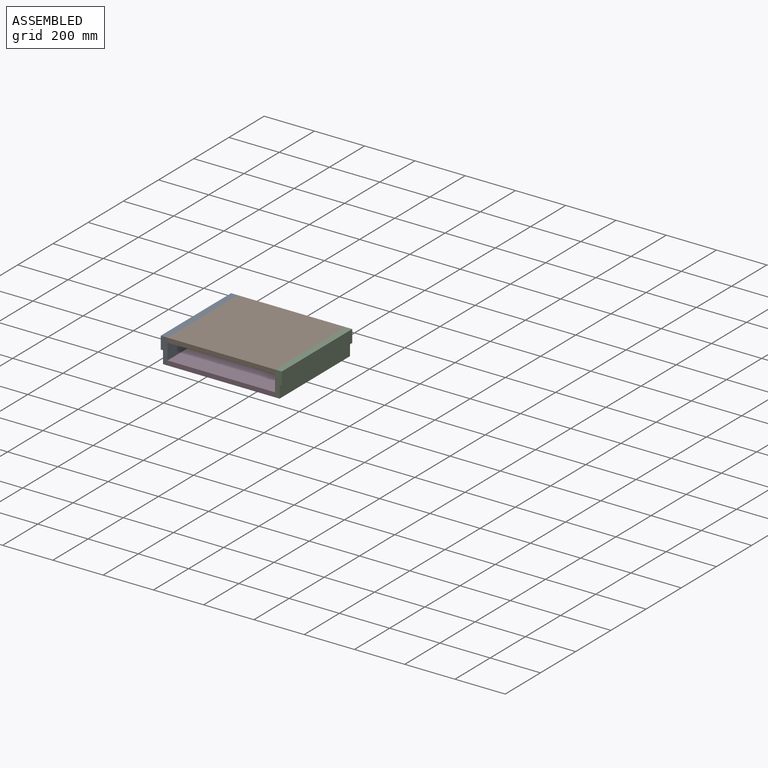
[diagram: assembled view]
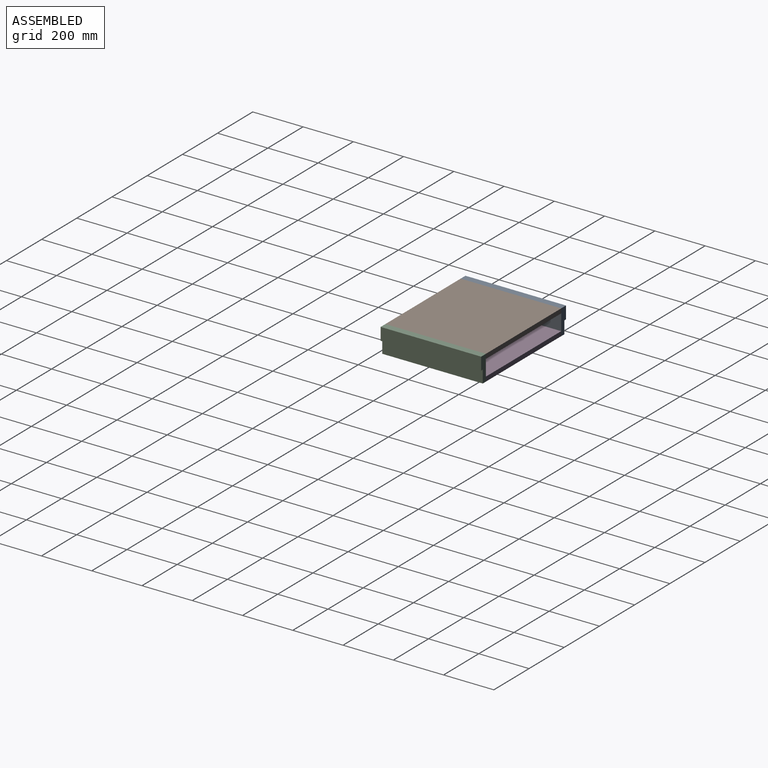
[diagram: assembled view, second angle]
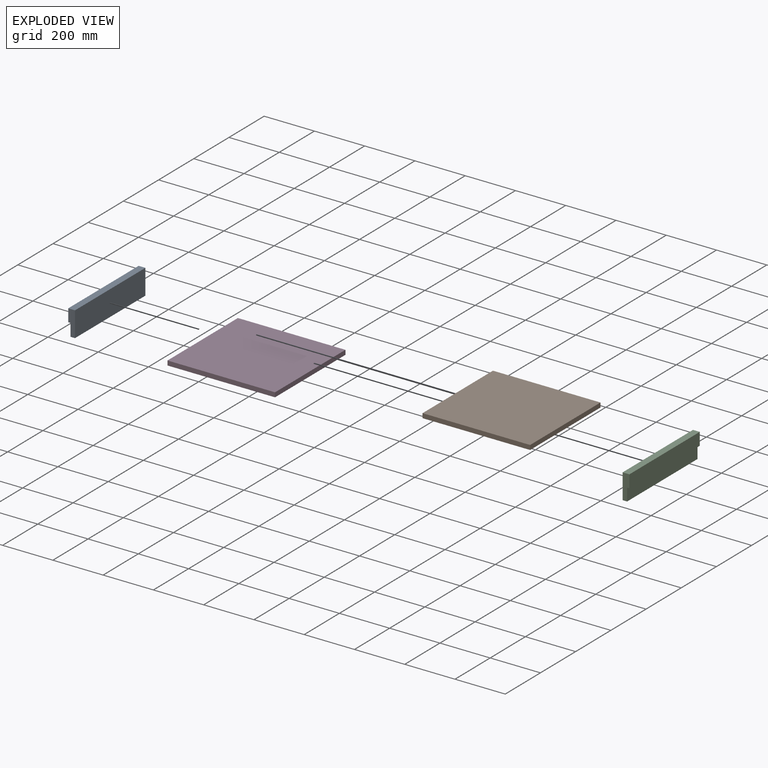
[diagram: exploded view]
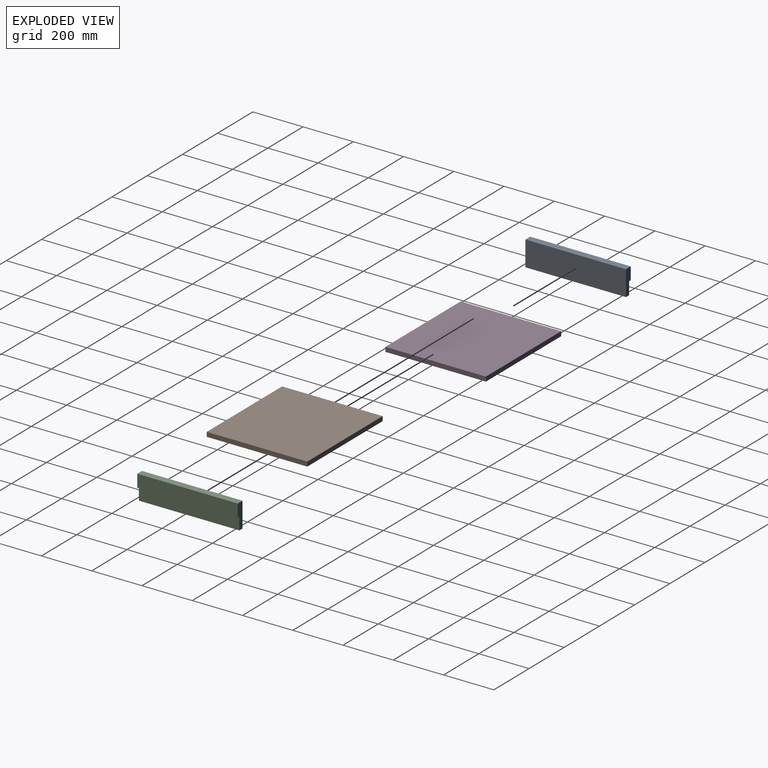
[diagram: exploded view, second angle]
ASSEMBLY  parts=4 mates=3
PART A: 8 faces, bbox 100x27x400 mm
  f0: plane 100x27mm, normal (0,0,1), area 2250mm2, adj f1,f3,f4,f5,f6,f7
  f1: plane 400x27mm, normal (-1,0,0), area 10800mm2, adj f0,f2,f5,f7
  f2: plane 100x27mm, normal (0,0,-1), area 2250mm2, adj f1,f3,f4,f5,f6,f7
  f3: plane 400x18mm, normal (1,0,0), area 7200mm2, adj f0,f2,f4,f5
  f4: plane 400x50mm, normal (0,-1,0), area 20000mm2, adj f0,f2,f3,f6
  f5: plane 400x100mm, normal (0,1,0), area 40000mm2, adj f0,f1,f2,f3
  f6: plane 400x9mm, normal (1,0,0), area 3600mm2, adj f0,f2,f4,f7
  f7: plane 400x50mm, normal (0,-1,0), area 20000mm2, adj f0,f1,f2,f6
PART B: 6 faces, bbox 428x400x18 mm
  f0: plane 428x18mm, normal (0,1,0), area 7704mm2, adj f1,f3,f4,f5
  f1: plane 400x18mm, normal (-1,0,0), area 7200mm2, adj f0,f2,f4,f5
  f2: plane 428x18mm, normal (0,-1,0), area 7704mm2, adj f1,f3,f4,f5
  f3: plane 400x18mm, normal (1,0,0), area 7200mm2, adj f0,f2,f4,f5
  f4: plane 428x400mm, normal (0,0,1), area 171200mm2, adj f0,f1,f2,f3
  f5: plane 428x400mm, normal (0,0,-1), area 171200mm2, adj f0,f1,f2,f3
PART C: same geometry as A
PART D: same geometry as B
PLACE A rot(axis=(0.58,0.58,-0.58),120deg) t=(-143.32,140.59,189.79)mm
PLACE B rot(axis=(0,1,0.01),0deg) t=(70.68,160.35,246.79)mm
PLACE C rot(axis=(-0.58,0.58,0.58),120deg) t=(284.68,-85.74,189.79)mm
PLACE D t=(70.68,160.35,164.79)mm
MATE fastened B.f3 <-> C.f5  axis (1,0,0) through (284.68,27.43,255.79)mm
MATE fastened B.f1 <-> A.f5  axis (-1,0,0) through (-143.32,27.43,255.79)mm
MATE fastened A.f5 <-> D.f1  axis (1,0,0) through (-143.32,27.43,164.79)mm
